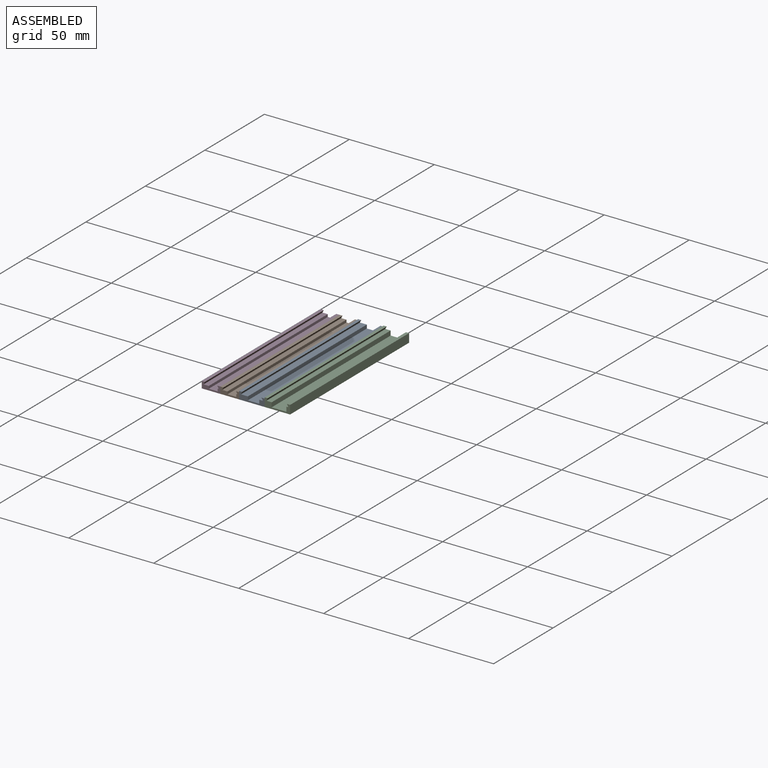
[diagram: assembled view]
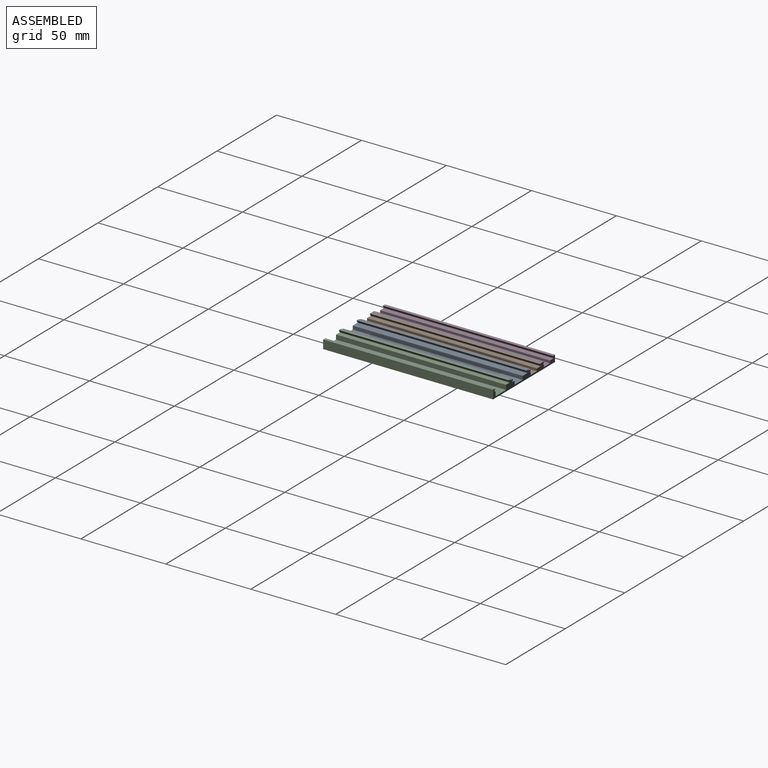
[diagram: assembled view, second angle]
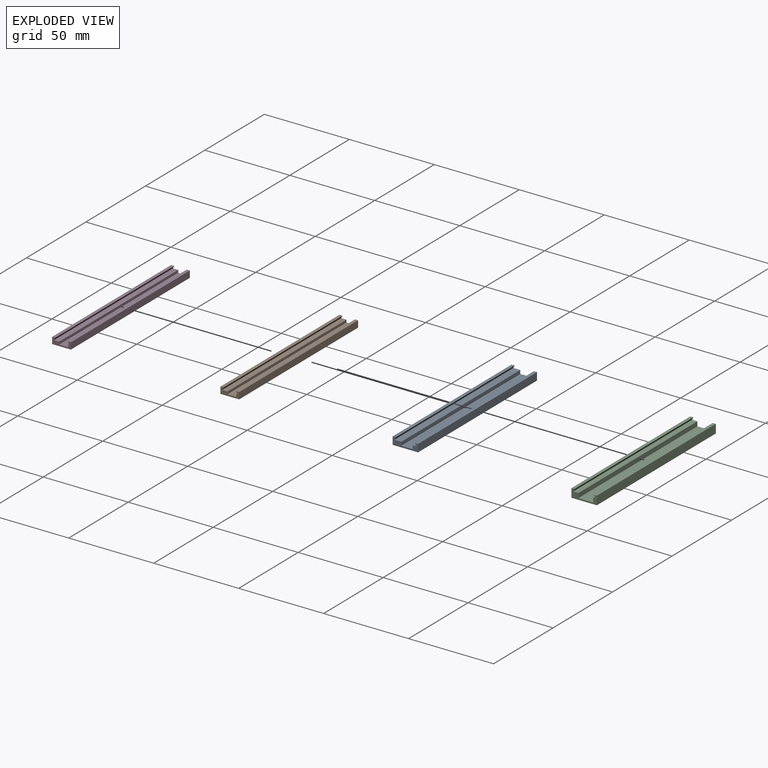
[diagram: exploded view]
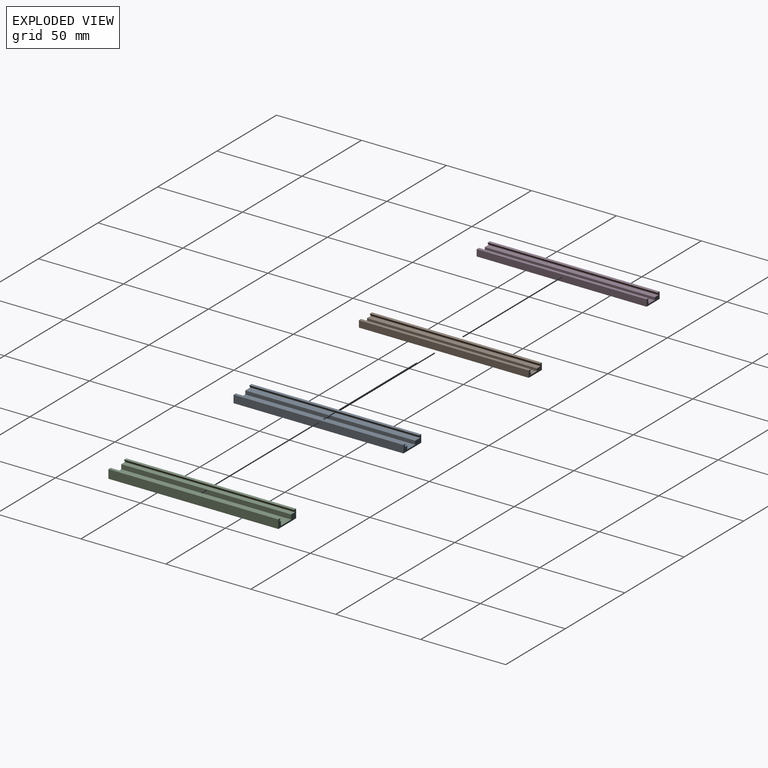
[diagram: exploded view, second angle]
ASSEMBLY  parts=4 mates=3
PART A: 16 faces, bbox 15x100x4.5 mm
  f0: plane 100x1.84mm, normal (0,0,1), area 184.3mm2, adj f1,f13,f14,f15
  f1: plane 100x4.5mm, normal (-1,0,0), area 450mm2, adj f0,f2,f14,f15
  f2: plane 100x15mm, normal (0,0,-1), area 1500mm2, adj f1,f3,f14,f15
  f3: plane 100x4.5mm, normal (1,0,0), area 450mm2, adj f2,f4,f14,f15
  f4: plane 100x1.84mm, normal (0,0,1), area 184.3mm2, adj f3,f5,f14,f15
  f5: plane 100x1.2mm, normal (-0.87,0,-0.5), area 138.6mm2, adj f4,f6,f14,f15
  f6: plane 100x0.3mm, normal (-1,0,0), area 30mm2, adj f5,f7,f14,f15
  f7: plane 100x2mm, normal (0,0,1), area 200mm2, adj f6,f8,f14,f15
  f8: plane 100x2.1mm, normal (-1,0,0), area 210mm2, adj f7,f9,f14,f15
  f9: plane 100x6.7mm, normal (0,0,1), area 670mm2, adj f8,f10,f14,f15
  f10: plane 100x2.1mm, normal (1,0,0), area 210mm2, adj f9,f11,f14,f15
  f11: plane 100x4mm, normal (0,0,1), area 400mm2, adj f10,f12,f14,f15
  f12: plane 100x0.3mm, normal (1,0,0), area 30mm2, adj f11,f13,f14,f15
  f13: plane 100x1.2mm, normal (0.87,0,-0.5), area 138.6mm2, adj f0,f12,f14,f15
  f14: plane 15x4.5mm, normal (0,-1,0), area 35.2mm2, adj f0,f1,f2,f3,f4,f5,f6,f7
  f15: plane 15x4.5mm, normal (0,1,0), area 35.2mm2, adj f0,f1,f2,f3,f4,f5,f6,f7
PART B: 16 faces, bbox 11x100x3.9 mm
  f0: plane 100x1.84mm, normal (0,0,1), area 184.3mm2, adj f1,f13,f14,f15
  f1: plane 100x3.9mm, normal (-1,0,0), area 390mm2, adj f0,f2,f14,f15
  f2: plane 100x11mm, normal (0,0,-1), area 1100mm2, adj f1,f3,f14,f15
  f3: plane 100x3.9mm, normal (1,0,0), area 390mm2, adj f2,f4,f14,f15
  f4: plane 100x1.84mm, normal (0,0,1), area 184.3mm2, adj f3,f5,f14,f15
  f5: plane 100x1.2mm, normal (-0.87,0,-0.5), area 138.6mm2, adj f4,f6,f14,f15
  f6: plane 100x0.3mm, normal (-1,0,0), area 30mm2, adj f5,f7,f14,f15
  f7: plane 100x0.5mm, normal (0,0,1), area 50mm2, adj f6,f8,f14,f15
  f8: plane 100x1.5mm, normal (-1,0,0), area 150mm2, adj f7,f9,f14,f15
  f9: plane 100x5.2mm, normal (0,0,1), area 520mm2, adj f8,f10,f14,f15
  f10: plane 100x1.5mm, normal (1,0,0), area 150mm2, adj f9,f11,f14,f15
  f11: plane 100x3mm, normal (0,0,1), area 300mm2, adj f10,f12,f14,f15
  f12: plane 100x0.3mm, normal (1,0,0), area 30mm2, adj f11,f13,f14,f15
  f13: plane 100x1.2mm, normal (0.87,0,-0.5), area 138.6mm2, adj f0,f12,f14,f15
  f14: plane 11x3.9mm, normal (0,-1,0), area 22.9mm2, adj f0,f1,f2,f3,f4,f5,f6,f7
  f15: plane 11x3.9mm, normal (0,1,0), area 22.9mm2, adj f0,f1,f2,f3,f4,f5,f6,f7
PART C: 16 faces, bbox 15x100x5.1 mm
  f0: plane 100x1.84mm, normal (0,0,1), area 184.3mm2, adj f1,f13,f14,f15
  f1: plane 100x5.1mm, normal (-1,0,0), area 510mm2, adj f0,f2,f14,f15
  f2: plane 100x15mm, normal (0,0,-1), area 1500mm2, adj f1,f3,f14,f15
  f3: plane 100x5.1mm, normal (1,0,0), area 510mm2, adj f2,f4,f14,f15
  f4: plane 100x1.84mm, normal (0,0,1), area 184.3mm2, adj f3,f5,f14,f15
  f5: plane 100x1.2mm, normal (-0.87,0,-0.5), area 138.6mm2, adj f4,f6,f14,f15
  f6: plane 100x0.3mm, normal (-1,0,0), area 30mm2, adj f5,f7,f14,f15
  f7: plane 100x1mm, normal (0,0,1), area 100mm2, adj f6,f8,f14,f15
  f8: plane 100x2.7mm, normal (-1,0,0), area 270mm2, adj f7,f9,f14,f15
  f9: plane 100x8.7mm, normal (0,0,1), area 870mm2, adj f8,f10,f14,f15
  f10: plane 100x2.7mm, normal (1,0,0), area 270mm2, adj f9,f11,f14,f15
  f11: plane 100x3mm, normal (0,0,1), area 300mm2, adj f10,f12,f14,f15
  f12: plane 100x0.3mm, normal (1,0,0), area 30mm2, adj f11,f13,f14,f15
  f13: plane 100x1.2mm, normal (0.87,0,-0.5), area 138.6mm2, adj f0,f12,f14,f15
  f14: plane 15x5.1mm, normal (0,-1,0), area 34.8mm2, adj f0,f1,f2,f3,f4,f5,f6,f7
  f15: plane 15x5.1mm, normal (0,1,0), area 34.8mm2, adj f0,f1,f2,f3,f4,f5,f6,f7
PART D: same geometry as B
PLACE A t=(28.7,23.61,-13.64)mm
PLACE B t=(17.7,23.61,-13.64)mm
PLACE C t=(43.7,23.61,-13.64)mm
PLACE D t=(6.7,23.61,-13.64)mm
MATE fastened C.f1 <-> A.f3  axis (-1,0,0) through (43.7,-76.39,-13.64)mm
MATE fastened B.f3 <-> A.f1  axis (1,0,0) through (28.7,-76.39,-13.64)mm
MATE fastened B.f1 <-> D.f3  axis (-1,0,0) through (17.7,-76.39,-13.64)mm
